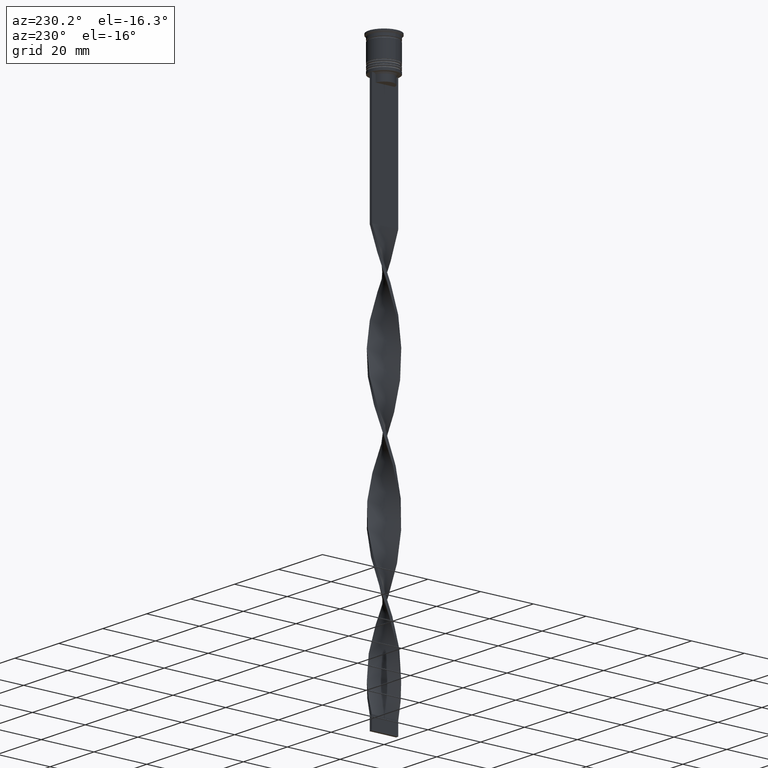
[diagram: clean part render]
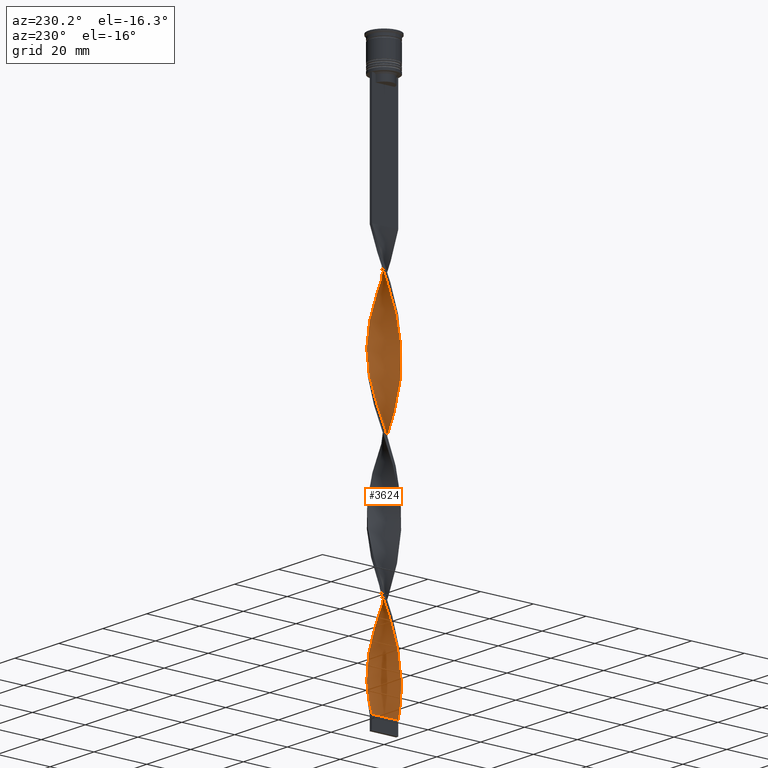
[diagram: same view with one face highlighted and labeled with its STEP entity id]
A machine part, auxiliary view. The second image highlights one B-rep face of the part: STEP entity #3624.
In plain terms, the highlighted face is a freeform B-spline surface patch.
Its self-contained STEP definition (entity closure, byte-faithful):
#14 = CARTESIAN_POINT ( 'NONE',  ( 2.272444445637943566, 4.481740313928203712, -151.9901960784313530 ) ) ;
#15 = CARTESIAN_POINT ( 'NONE',  ( 1.339972216233587865, -4.842981980115355967, -114.0098039215686185 ) ) ;
#20 = CARTESIAN_POINT ( 'NONE',  ( 5.028189627835276454, -0.4290914677958224122, -80.41176470588234793 ) ) ;
#35 = CARTESIAN_POINT ( 'NONE',  ( -2.272444445637943122, -4.481740313928203712, -102.3235294117646959 ) ) ;
#38 = CARTESIAN_POINT ( 'NONE',  ( -4.533641475362164996, -2.216507476658135189, -92.09803921568628482 ) ) ;
#41 = CARTESIAN_POINT ( 'NONE',  ( 4.004954025026647102, 3.070367026697015778, -92.09803921568628482 ) ) ;
#51 = CARTESIAN_POINT ( 'NONE',  ( -4.672296720828054362, 1.849227771946823751, -78.95098039215686470 ) ) ;
#53 = CARTESIAN_POINT ( 'NONE',  ( -4.863729793965000603, -1.345712789752187222, -89.17647058823528994 ) ) ;
#57 = CARTESIAN_POINT ( 'NONE',  ( -5.024805061206823353, -0.03652529083100779922, -131.5392156862745310 ) ) ;
#68 = CARTESIAN_POINT ( 'NONE',  ( 4.945959710900137196, 0.8874021287740044839, -137.3823529411764639 ) ) ;
#69 = CARTESIAN_POINT ( 'NONE',  ( 1.410234138924801428, 4.822990739511224589, -154.9117647058823479 ) ) ;
#87 = CARTESIAN_POINT ( 'NONE',  ( 5.021420494578371141, 0.5021420494578369143, -83.33333333333332860 ) ) ;
#89 = CARTESIAN_POINT ( 'NONE',  ( -3.688768818211570100, 3.412181795536402440, -172.4411764705882035 ) ) ;
#106 = CARTESIAN_POINT ( 'NONE',  ( -3.688768818211570100, 3.412181795536402440, -172.4411764705882035 ) ) ;
#108 = CARTESIAN_POINT ( 'NONE',  ( -4.945959710900137196, -0.8874021287740051500, -187.0490196078431211 ) ) ;
#110 = CARTESIAN_POINT ( 'NONE',  ( 4.533641475362163220, -2.216507476658133413, -173.9019607843137294 ) ) ;
#123 = CARTESIAN_POINT ( 'NONE',  ( -5.024805061206825130, 0.03652529083100775065, -184.1274509803921546 ) ) ;
#125 = CARTESIAN_POINT ( 'NONE',  ( -2.998973759622457269, 4.031892407926575217, -169.5196078431372371 ) ) ;
#142 = CARTESIAN_POINT ( 'NONE',  ( 3.688768818211569211, 3.412181795536400664, -93.55882352941176805 ) ) ;
#144 = CARTESIAN_POINT ( 'NONE',  ( -0.8912038472716528048, 4.967148691534573501, -162.2156862745098351 ) ) ;
#159 = CARTESIAN_POINT ( 'NONE',  ( 4.533641475362163220, -2.216507476658133413, -74.56862745098038658 ) ) ;
#165 = CARTESIAN_POINT ( 'NONE',  ( -0.4999999999999993339, 4.999999999999999112, -207.5000000000000000 ) ) ;
#175 = CARTESIAN_POINT ( 'NONE',  ( 4.672296720828052585, 1.849227771946823973, -187.0490196078431211 ) ) ;
#178 = CARTESIAN_POINT ( 'NONE',  ( 0.5000000000000000000, 5.000000000000000888, -58.50000000000000000 ) ) ;
#192 = CARTESIAN_POINT ( 'NONE',  ( -3.426799919866742261, 3.704571868705843318, -118.3921568627451109 ) ) ;
#215 = CARTESIAN_POINT ( 'NONE',  ( 4.932536701743520879, 0.9592088854640268281, -184.1274509803921546 ) ) ;
#224 = CARTESIAN_POINT ( 'NONE',  ( 3.057269382251585288, -3.987869597209392936, -67.26470588235292780 ) ) ;
#230 = CARTESIAN_POINT ( 'NONE',  ( -4.672296720828052585, -1.849227771946823307, -137.3823529411764639 ) ) ;
#247 = CARTESIAN_POINT ( 'NONE',  ( -0.9633182312101493672, 4.953668176878984752, -109.6274509803921546 ) ) ;
#255 = CARTESIAN_POINT ( 'NONE',  ( -4.672296720828054362, 1.849227771946823751, -78.95098039215686470 ) ) ;
#261 = CARTESIAN_POINT ( 'NONE',  ( 4.049165433819487347, -3.011821659854190703, -71.64705882352942012 ) ) ;
#266 = CARTESIAN_POINT ( 'NONE',  ( 0.8912038472716534709, 4.967148691534572613, -203.1176470588235361 ) ) ;
#271 = CARTESIAN_POINT ( 'NONE',  ( 2.207052246521972183, -4.514301760086749660, -116.9313725490195992 ) ) ;
#274 = CARTESIAN_POINT ( 'NONE',  ( 4.533641475362164996, 2.216507476658134301, -141.7647058823529562 ) ) ;
#280 = CARTESIAN_POINT ( 'NONE',  ( 1.857150046639456153, -4.692313302143462650, -162.2156862745098351 ) ) ;
#287 = CARTESIAN_POINT ( 'NONE',  ( 1.339972216233586311, 4.842981980115355078, -201.6568627450980387 ) ) ;
#292 = CARTESIAN_POINT ( 'NONE',  ( 4.500940532747438994, -2.282179822423430871, -127.1568627450980102 ) ) ;
#294 = CARTESIAN_POINT ( 'NONE',  ( -1.788740585195521815, 4.718815268696139320, -65.80392156862745878 ) ) ;
#299 = CARTESIAN_POINT ( 'NONE',  ( -2.687738844636428759, 4.271167325712942997, -115.4705882352941018 ) ) ;
#309 = CARTESIAN_POINT ( 'NONE',  ( -4.291403454590827060, -2.614164568256162280, -93.55882352941176805 ) ) ;
#313 = CARTESIAN_POINT ( 'NONE',  ( 0.03668176878985105610, 5.046331823121016136, -59.96078431372549034 ) ) ;
#318 = CARTESIAN_POINT ( 'NONE',  ( 4.500940532747436329, 2.282179822423429982, -89.17647058823528994 ) ) ;
#333 = CARTESIAN_POINT ( 'NONE',  ( 5.021420494578372917, -0.5021420494578382465, -133.0000000000000000 ) ) ;
#335 = CARTESIAN_POINT ( 'NONE',  ( -4.252947278887043936, 2.676273424560223102, -76.02941176470586981 ) ) ;
#337 = CARTESIAN_POINT ( 'NONE',  ( -1.857150046639456153, 4.692313302143462650, -112.5490196078431495 ) ) ;
#343 = ORIENTED_EDGE ( 'NONE', *, *, #979, .T. ) ;
#349 = CARTESIAN_POINT ( 'NONE',  ( -4.004954025026648878, 3.070367026697015778, -74.56862745098038658 ) ) ;
#350 = CARTESIAN_POINT ( 'NONE',  ( -0.9633182312101484790, -4.953668176878986529, -206.0392156862745026 ) ) ;
#353 = CARTESIAN_POINT ( 'NONE',  ( -3.688768818211570100, -3.412181795536400664, -143.2254901960784537 ) ) ;
#363 = CARTESIAN_POINT ( 'NONE',  ( 4.945959710900135420, -0.8874021287740040398, -78.95098039215686470 ) ) ;
#387 = CARTESIAN_POINT ( 'NONE',  ( -3.737982676843116803, -3.358196764280017010, -195.8137254901960773 ) ) ;
#409 = CARTESIAN_POINT ( 'NONE',  ( 0.9633182312101489231, -4.953668176878984752, -59.96078431372549744 ) ) ;
#411 = CARTESIAN_POINT ( 'NONE',  ( -3.426799919866744482, -3.704571868705844206, -197.2745098039215463 ) ) ;
#414 = CARTESIAN_POINT ( 'NONE',  ( 4.863729793964998827, -1.345712789752187000, -176.8235294117647243 ) ) ;
#427 = CARTESIAN_POINT ( 'NONE',  ( 4.252947278887042160, 2.676273424560221770, -90.63725490196078738 ) ) ;
#429 = CARTESIAN_POINT ( 'NONE',  ( -2.207052246521971739, 4.514301760086749660, -166.5980392156862706 ) ) ;
#446 = CARTESIAN_POINT ( 'NONE',  ( 2.207052246521970851, 4.514301760086748772, -99.40196078431372939 ) ) ;
#449 = DIRECTION ( 'NONE',  ( 0.000000000000000000, 1.000000000000000000, 0.000000000000000000 ) ) ;
#465 = CARTESIAN_POINT ( 'NONE',  ( -3.688768818211570100, -3.412181795536400664, -143.2254901960784537 ) ) ;
#482 = CARTESIAN_POINT ( 'NONE',  ( 2.272444445637942234, -4.481740313928202823, -163.6764705882352757 ) ) ;
#502 = CARTESIAN_POINT ( 'NONE',  ( 3.737982676843115026, -3.358196764280016566, -169.5196078431372371 ) ) ;
#515 = EDGE_CURVE ( 'NONE', #3653, #2132, #2410, .T. ) ;
#524 = CARTESIAN_POINT ( 'NONE',  ( -4.932536701743520879, -0.9592088854640250517, -134.4607843137254974 ) ) ;
#541 = CARTESIAN_POINT ( 'NONE',  ( 4.291403454590825284, -2.614164568256161836, -172.4411764705882035 ) ) ;
#546 = CARTESIAN_POINT ( 'NONE',  ( -5.028189627835278230, -0.4290914677958230783, -86.25490196078432348 ) ) ;
#560 = CARTESIAN_POINT ( 'NONE',  ( -2.687738844636429647, -4.271167325712944773, -100.8627450980392126 ) ) ;
#564 = CARTESIAN_POINT ( 'NONE',  ( 0.4272610392408998647, -5.006740257327794374, -111.0882352941176379 ) ) ;
#571 = CARTESIAN_POINT ( 'NONE',  ( 0.03668176878985138917, -5.046331823121015248, -156.3725490196078454 ) ) ;
#584 = CARTESIAN_POINT ( 'NONE',  ( 3.057269382251587952, 3.987869597209392047, -149.0686274509803866 ) ) ;
#587 = CARTESIAN_POINT ( 'NONE',  ( -4.843652908908672394, 1.416275721470217741, -80.41176470588234793 ) ) ;
#595 = CARTESIAN_POINT ( 'NONE',  ( 1.410234138924802538, -4.822990739511222813, -160.7549019607842808 ) ) ;
#605 = CARTESIAN_POINT ( 'NONE',  ( 0.5000000000000000000, 5.000000000000000888, -157.8333333333333144 ) ) ;
#606 = CARTESIAN_POINT ( 'NONE',  ( 3.426799919866744926, 3.704571868705843762, -147.6078431372548891 ) ) ;
#613 = CARTESIAN_POINT ( 'NONE',  ( -0.03668176878985203448, 5.046331823121015248, -106.7058823529411882 ) ) ;
#624 = CARTESIAN_POINT ( 'NONE',  ( 2.998973759622457269, -4.031892407926575217, -119.8529411764705799 ) ) ;
#626 = CARTESIAN_POINT ( 'NONE',  ( 0.5000000000000000000, 5.000000000000000888, -58.50000000000000000 ) ) ;
#631 = CARTESIAN_POINT ( 'NONE',  ( 2.625363907848422773, 4.309788251477359111, -97.94117647058824616 ) ) ;
#645 = CARTESIAN_POINT ( 'NONE',  ( 1.788740585195521371, -4.718815268696139320, -115.4705882352940876 ) ) ;
#646 = CARTESIAN_POINT ( 'NONE',  ( -5.021420494578373805, 0.5021420494578375804, -182.6666666666666856 ) ) ;
#649 = CARTESIAN_POINT ( 'NONE',  ( -1.788740585195520039, -4.718815268696138432, -150.5294117647058840 ) ) ;
#660 = CARTESIAN_POINT ( 'NONE',  ( -2.272444445637943122, -4.481740313928203712, -201.6568627450980387 ) ) ;
#664 = CARTESIAN_POINT ( 'NONE',  ( 1.788740585195521593, 4.718815268696137544, -200.1960784313725696 ) ) ;
#676 = CARTESIAN_POINT ( 'NONE',  ( -4.843652908908672394, 1.416275721470217963, -179.7450980392157192 ) ) ;
#681 = CARTESIAN_POINT ( 'NONE',  ( -0.4999999999999993339, 4.999999999999999112, -207.5000000000000000 ) ) ;
#696 = CARTESIAN_POINT ( 'NONE',  ( -4.698685634663581467, -1.781110133205160206, -189.9705882352941160 ) ) ;
#700 = CARTESIAN_POINT ( 'NONE',  ( -4.863729793965000603, -1.345712789752187222, -188.5098039215686185 ) ) ;
#717 = CARTESIAN_POINT ( 'NONE',  ( 5.028189627835276454, -0.4290914677958224122, -80.41176470588234793 ) ) ;
#722 = CARTESIAN_POINT ( 'NONE',  ( 4.672296720828052585, 1.849227771946823973, -187.0490196078431211 ) ) ;
#726 = CARTESIAN_POINT ( 'NONE',  ( 0.03668176878985105610, 5.046331823121016136, -59.96078431372549744 ) ) ;
#735 = CARTESIAN_POINT ( 'NONE',  ( -4.049165433819489124, -3.011821659854192479, -194.3529411764705799 ) ) ;
#739 = CARTESIAN_POINT ( 'NONE',  ( 5.021420494578372029, 0.5021420494578369143, -182.6666666666666856 ) ) ;
#740 = CARTESIAN_POINT ( 'NONE',  ( -0.5000000000000002220, -1.666666666666667851, -207.5000000000000000 ) ) ;
#751 = CARTESIAN_POINT ( 'NONE',  ( 5.028189627835276454, -0.4290914677958224122, -179.7450980392157192 ) ) ;
#771 = CARTESIAN_POINT ( 'NONE',  ( 4.252947278887042160, 2.676273424560221770, -189.9705882352941160 ) ) ;
#781 = CARTESIAN_POINT ( 'NONE',  ( 4.863729793964998827, -1.345712789752187000, -77.49019607843136725 ) ) ;
#788 = CARTESIAN_POINT ( 'NONE',  ( -2.998973759622455493, -4.031892407926574329, -146.1470588235294201 ) ) ;
#789 = LINE ( 'NONE', #3433, #3043 ) ;
#806 = CARTESIAN_POINT ( 'NONE',  ( 0.5000000000000000000, -4.999999999999999112, -157.8333333333333144 ) ) ;
#811 = CARTESIAN_POINT ( 'NONE',  ( -1.788740585195521815, 4.718815268696139320, -65.80392156862747299 ) ) ;
#828 = CARTESIAN_POINT ( 'NONE',  ( 1.410234138924802538, -4.822990739511222813, -160.7549019607842808 ) ) ;
#852 = CARTESIAN_POINT ( 'NONE',  ( -3.426799919866744037, -3.704571868705844206, -97.94117647058824616 ) ) ;
#853 =( BOUNDED_CURVE ( )  B_SPLINE_CURVE ( 2, ( #1049, #3197, #3161, #1722, #1661, #2881, #224, #1394, #2916, #261, #1435, #1070, #3409, #781, #2390, #20, #1524, #1805, #3791, #1510, #2373, #318, #2996, #41, #3505, #2658, #1495, #631, #1190, #3547, #2062, #2681, #1225, #613, #2957, #897, #1824, #337, #1144, #299, #1472, #3013, #1785, #3276, #1210, #1162, #2405, #3561, #2699, #2328, #57, #3576, #911, #2080, #3258, #2974, #3297, #929, #353, #2094, #859, #2351, #2112, #649, #2037, #2641, #3218, #571, #1749, #2939, #595, #280, #1452, #3808, #3528, #881, #3241, #1768, #1563, #110, #1295, #414, #3107, #2130, #2205, #739, #2189, #3069, #722, #2773, #2424, #2753, #1582, #3370, #3312, #2146, #3667, #664, #2440, #1841, #2168, #1881, #681 ),
 .UNSPECIFIED., .F., .T. ) 
 B_SPLINE_CURVE_WITH_KNOTS ( ( 3, 2, 2, 2, 2, 2, 2, 2, 2, 2, 2, 2, 2, 2, 2, 2, 2, 2, 2, 2, 2, 2, 2, 2, 2, 2, 2, 2, 2, 2, 2, 2, 2, 2, 2, 2, 2, 2, 2, 2, 2, 2, 2, 2, 2, 2, 2, 2, 2, 2, 2, 3 ),
 ( 0.000000000000000000, 0.01470588235294117453, 0.02941176470588234906, 0.04411764705882353227, 0.05882352941176469813, 0.07352941176470588480, 0.08823529411764706454, 0.1029411764705882443, 0.1176470588235293963, 0.1323529411764705899, 0.1470588235294117696, 0.1617647058823529493, 0.1764705882352941291, 0.1911764705882352811, 0.2058823529411764885, 0.2205882352941176405, 0.2352941176470587925, 0.2500000000000000000, 0.2647058823529411797, 0.2794117647058823595, 0.2941176470588235392, 0.3088235294117647189, 0.3235294117647058987, 0.3382352941176470229, 0.3529411764705882582, 0.3676470588235294379, 0.3823529411764705621, 0.3970588235294117418, 0.4117647058823529771, 0.4264705882352941013, 0.4411764705882352811, 0.4558823529411764608, 0.4705882352941175850, 0.4852941176470588203, 0.5000000000000000000, 0.5147058823529411242, 0.5294117647058823595, 0.5441176470588234837, 0.5588235294117647189, 0.5735294117647058432, 0.5882352941176470784, 0.6029411764705882026, 0.6176470588235294379, 0.6323529411764705621, 0.6470588235294117974, 0.6617647058823529216, 0.6764705882352940458, 0.6911764705882351700, 0.7058823529411765163, 0.7205882352941176405, 0.7352941176470588758, 0.7500000000000000000 ),
 .UNSPECIFIED. ) 
 CURVE ( )  GEOMETRIC_REPRESENTATION_ITEM ( )  RATIONAL_B_SPLINE_CURVE ( ( 1.000000000000000000, 0.9957341762950344677, 1.000000000000000000, 0.9957341762950344677, 1.000000000000000000, 0.9957341762950344677, 1.000000000000000000, 0.9957341762950344677, 1.000000000000000000, 0.9957341762950344677, 1.000000000000000000, 0.9957341762950344677, 1.000000000000000000, 0.9957341762950344677, 1.000000000000000000, 0.9957341762950344677, 1.000000000000000000, 0.9957341762950344677, 1.000000000000000000, 0.9957341762950344677, 1.000000000000000000, 0.9957341762950344677, 1.000000000000000000, 0.9957341762950344677, 1.000000000000000000, 0.9957341762950344677, 1.000000000000000000, 0.9957341762950344677, 1.000000000000000000, 0.9957341762950344677, 1.000000000000000000, 0.9957341762950344677, 1.000000000000000000, 0.9957341762950344677, 1.000000000000000000, 0.9957341762950344677, 1.000000000000000000, 0.9957341762950344677, 1.000000000000000000, 0.9957341762950344677, 1.000000000000000000, 0.9957341762950344677, 1.000000000000000000, 0.9957341762950344677, 1.000000000000000000, 0.9957341762950344677, 1.000000000000000000, 0.9957341762950344677, 1.000000000000000000, 0.9957341762950344677, 1.000000000000000000, 0.9957341762950344677, 1.000000000000000000, 0.9957341762950344677, 1.000000000000000000, 0.9957341762950344677, 1.000000000000000000, 0.9957341762950344677, 1.000000000000000000, 0.9957341762950344677, 1.000000000000000000, 0.9957341762950344677, 1.000000000000000000, 0.9957341762950344677, 1.000000000000000000, 0.9957341762950344677, 1.000000000000000000, 0.9957341762950344677, 1.000000000000000000, 0.9957341762950344677, 1.000000000000000000, 0.9957341762950344677, 1.000000000000000000, 0.9957341762950344677, 1.000000000000000000, 0.9957341762950344677, 1.000000000000000000, 0.9957341762950344677, 1.000000000000000000, 0.9957341762950344677, 1.000000000000000000, 0.9957341762950344677, 1.000000000000000000, 0.9957341762950344677, 1.000000000000000000, 0.9957341762950344677, 1.000000000000000000, 0.9957341762950344677, 1.000000000000000000, 0.9957341762950344677, 1.000000000000000000, 0.9957341762950344677, 1.000000000000000000, 0.9957341762950344677, 1.000000000000000000, 0.9957341762950344677, 1.000000000000000000, 0.9957341762950344677, 1.000000000000000000, 0.9957341762950344677, 1.000000000000000000, 0.9957341762950344677, 1.000000000000000000 ) ) 
 REPRESENTATION_ITEM ( '' )  );
#855 = CARTESIAN_POINT ( 'NONE',  ( 4.004954025026647990, -3.070367026697017110, -124.2352941176470580 ) ) ;
#859 = CARTESIAN_POINT ( 'NONE',  ( -2.998973759622455493, -4.031892407926574329, -146.1470588235294201 ) ) ;
#872 = CARTESIAN_POINT ( 'NONE',  ( 4.049165433819487347, 3.011821659854193811, -144.6862745098039227 ) ) ;
#881 = CARTESIAN_POINT ( 'NONE',  ( 3.426799919866743149, -3.704571868705843318, -168.0588235294117680 ) ) ;
#891 = CARTESIAN_POINT ( 'NONE',  ( 0.9633182312101491451, 4.953668176878986529, -156.3725490196078454 ) ) ;
#893 = CARTESIAN_POINT ( 'NONE',  ( -4.291403454590827060, -2.614164568256162280, -93.55882352941176805 ) ) ;
#897 = CARTESIAN_POINT ( 'NONE',  ( -0.9633182312101493672, 4.953668176878983864, -109.6274509803921404 ) ) ;
#901 = CARTESIAN_POINT ( 'NONE',  ( -0.5000000000000006661, -5.000000000000000888, -207.5000000000000000 ) ) ;
#905 = CARTESIAN_POINT ( 'NONE',  ( -4.049165433819489124, -3.011821659854192479, -95.01960784313725128 ) ) ;
#907 = CARTESIAN_POINT ( 'NONE',  ( -4.049165433819489124, -3.011821659854192035, -95.01960784313726549 ) ) ;
#911 = CARTESIAN_POINT ( 'NONE',  ( -4.932536701743520879, -0.9592088854640250517, -134.4607843137254974 ) ) ;
#922 = CARTESIAN_POINT ( 'NONE',  ( -3.737982676843116803, -3.358196764280017010, -96.48039215686274872 ) ) ;
#924 = CARTESIAN_POINT ( 'NONE',  ( 4.672296720828054362, -1.849227771946825527, -128.6176470588235361 ) ) ;
#929 = CARTESIAN_POINT ( 'NONE',  ( -4.004954025026647102, -3.070367026697014889, -141.7647058823529562 ) ) ;
#945 = CARTESIAN_POINT ( 'NONE',  ( -3.372583611396491321, 3.753996564375790879, -170.9803921568627629 ) ) ;
#964 = CARTESIAN_POINT ( 'NONE',  ( 5.024805061206822465, 0.03652529083100720941, -81.87254901960783116 ) ) ;
#966 = CARTESIAN_POINT ( 'NONE',  ( -4.500940532747438105, 2.282179822423430871, -176.8235294117647243 ) ) ;
#975 = ORIENTED_EDGE ( 'NONE', *, *, #1318, .F. ) ;
#979 = EDGE_CURVE ( 'NONE', #2886, #2132, #853, .T. ) ;
#981 = CARTESIAN_POINT ( 'NONE',  ( -0.8912038472716528048, 4.967148691534573501, -162.2156862745098351 ) ) ;
#983 = CARTESIAN_POINT ( 'NONE',  ( -4.049165433819489124, -3.011821659854192035, -194.3529411764705799 ) ) ;
#1001 = ORIENTED_EDGE ( 'NONE', *, *, #515, .F. ) ;
#1002 = CARTESIAN_POINT ( 'NONE',  ( -2.998973759622457269, 4.031892407926575217, -169.5196078431372371 ) ) ;
#1005 = CARTESIAN_POINT ( 'NONE',  ( -4.252947278887043936, 2.676273424560223102, -175.3627450980391984 ) ) ;
#1021 = CARTESIAN_POINT ( 'NONE',  ( -4.004954025026648878, 3.070367026697015778, -173.9019607843137294 ) ) ;
#1038 = CARTESIAN_POINT ( 'NONE',  ( -0.8912038472716541371, -4.967148691534571725, -153.4509803921568789 ) ) ;
#1049 = CARTESIAN_POINT ( 'NONE',  ( 0.5000000000000000000, -4.999999999999999112, -58.50000000000000000 ) ) ;
#1058 = CARTESIAN_POINT ( 'NONE',  ( 4.698685634663579691, -1.781110133205159762, -175.3627450980391984 ) ) ;
#1070 = CARTESIAN_POINT ( 'NONE',  ( 4.533641475362163220, -2.216507476658133413, -74.56862745098038658 ) ) ;
#1074 = CARTESIAN_POINT ( 'NONE',  ( -4.945959710900135420, 0.8874021287740058161, -128.6176470588235361 ) ) ;
#1092 = CARTESIAN_POINT ( 'NONE',  ( -5.028189627835275566, 0.4290914677958205803, -130.0784313725490335 ) ) ;
#1115 = CARTESIAN_POINT ( 'NONE',  ( -2.272444445637943122, 4.481740313928201935, -114.0098039215686185 ) ) ;
#1141 = CARTESIAN_POINT ( 'NONE',  ( 5.028189627835278230, 0.4290914677958235779, -135.9215686274509665 ) ) ;
#1144 = CARTESIAN_POINT ( 'NONE',  ( -2.272444445637943122, 4.481740313928201935, -114.0098039215686185 ) ) ;
#1151 = CARTESIAN_POINT ( 'NONE',  ( 1.788740585195521593, 4.718815268696137544, -200.1960784313725981 ) ) ;
#1156 = CARTESIAN_POINT ( 'NONE',  ( -4.932536701743521768, 0.9592088854640273832, -81.87254901960783116 ) ) ;
#1158 = CARTESIAN_POINT ( 'NONE',  ( -2.625363907848424105, 4.309788251477359999, -68.72549019607842524 ) ) ;
#1162 = CARTESIAN_POINT ( 'NONE',  ( -4.533641475362163220, 2.216507476658134745, -124.2352941176470580 ) ) ;
#1180 = CARTESIAN_POINT ( 'NONE',  ( 2.625363907848422773, -4.309788251477360888, -118.3921568627451109 ) ) ;
#1183 = CARTESIAN_POINT ( 'NONE',  ( 3.688768818211570100, -3.412181795536402884, -122.7745098039215605 ) ) ;
#1190 = CARTESIAN_POINT ( 'NONE',  ( 2.207052246521970851, 4.514301760086748772, -99.40196078431372939 ) ) ;
#1203 = CARTESIAN_POINT ( 'NONE',  ( -5.024805061206825130, 0.03652529083100775065, -84.79411764705882604 ) ) ;
#1205 = CARTESIAN_POINT ( 'NONE',  ( -4.004954025026648878, 3.070367026697015778, -74.56862745098038658 ) ) ;
#1210 = CARTESIAN_POINT ( 'NONE',  ( -4.291403454590824396, 2.614164568256162280, -122.7745098039215605 ) ) ;
#1219 = CARTESIAN_POINT ( 'NONE',  ( -5.021420494578372917, 0.5021420494578375804, -83.33333333333332860 ) ) ;
#1220 = CARTESIAN_POINT ( 'NONE',  ( 2.207052246521972183, -4.514301760086749660, -116.9313725490195992 ) ) ;
#1225 = CARTESIAN_POINT ( 'NONE',  ( 0.4272610392409007529, 5.006740257327792598, -105.2450980392156765 ) ) ;
#1234 = CARTESIAN_POINT ( 'NONE',  ( 4.863729793965001491, 1.345712789752185889, -138.8431372549019045 ) ) ;
#1236 = CARTESIAN_POINT ( 'NONE',  ( -4.932536701743521768, 0.9592088854640273832, -181.2058823529411598 ) ) ;
#1255 = CARTESIAN_POINT ( 'NONE',  ( -3.057269382251586176, -3.987869597209393824, -198.7352941176470722 ) ) ;
#1256 = CARTESIAN_POINT ( 'NONE',  ( -5.028189627835278230, -0.4290914677958230783, -185.5882352941176237 ) ) ;
#1270 = CARTESIAN_POINT ( 'NONE',  ( -4.672296720828054362, 1.849227771946823751, -178.2843137254901933 ) ) ;
#1272 = CARTESIAN_POINT ( 'NONE',  ( -4.291403454590827060, -2.614164568256162280, -192.8921568627450824 ) ) ;
#1273 = CARTESIAN_POINT ( 'NONE',  ( -0.4999999999999993339, 4.999999999999999112, -207.5000000000000000 ) ) ;
#1288 = CARTESIAN_POINT ( 'NONE',  ( -4.533641475362164996, -2.216507476658135189, -191.4313725490196134 ) ) ;
#1295 = CARTESIAN_POINT ( 'NONE',  ( 4.698685634663579691, -1.781110133205159762, -175.3627450980391984 ) ) ;
#1310 = CARTESIAN_POINT ( 'NONE',  ( 3.372583611396490877, 3.753996564375789102, -95.01960784313725128 ) ) ;
#1313 = CARTESIAN_POINT ( 'NONE',  ( 0.03668176878985105610, 5.046331823121016136, -159.2941176470588118 ) ) ;
#1318 = EDGE_CURVE ( 'NONE', #2369, #3653, #2813, .T. ) ;
#1326 = CARTESIAN_POINT ( 'NONE',  ( 0.8912038472716534709, 4.967148691534572613, -103.7843137254901933 ) ) ;
#1342 = CARTESIAN_POINT ( 'NONE',  ( -0.4999999999999993339, 4.999999999999999112, -108.1666666666666572 ) ) ;
#1362 = CARTESIAN_POINT ( 'NONE',  ( -4.863729793964998827, 1.345712789752186778, -127.1568627450980102 ) ) ;
#1385 = CARTESIAN_POINT ( 'NONE',  ( 2.998973759622456825, 4.031892407926573441, -195.8137254901960773 ) ) ;
#1394 = CARTESIAN_POINT ( 'NONE',  ( 3.426799919866743149, -3.704571868705843318, -68.72549019607842524 ) ) ;
#1397 = CARTESIAN_POINT ( 'NONE',  ( 0.5000000000000000000, -4.999999999999999112, -58.50000000000000000 ) ) ;
#1399 = CARTESIAN_POINT ( 'NONE',  ( -1.339972216233586755, -4.842981980115355078, -151.9901960784313530 ) ) ;
#1429 = CARTESIAN_POINT ( 'NONE',  ( 1.788740585195521371, -4.718815268696139320, -115.4705882352941018 ) ) ;
#1435 = CARTESIAN_POINT ( 'NONE',  ( 4.291403454590825284, -2.614164568256161836, -73.10784313725488914 ) ) ;
#1445 = CARTESIAN_POINT ( 'NONE',  ( 4.533641475362164996, 2.216507476658134301, -141.7647058823529562 ) ) ;
#1447 = CARTESIAN_POINT ( 'NONE',  ( 2.625363907848422773, -4.309788251477360888, -118.3921568627451109 ) ) ;
#1452 = CARTESIAN_POINT ( 'NONE',  ( 2.272444445637942234, -4.481740313928202823, -163.6764705882352757 ) ) ;
#1464 = CARTESIAN_POINT ( 'NONE',  ( 0.4272610392408998647, -5.006740257327794374, -111.0882352941176379 ) ) ;
#1467 = CARTESIAN_POINT ( 'NONE',  ( -5.024805061206825130, 0.03652529083100775065, -84.79411764705882604 ) ) ;
#1472 = CARTESIAN_POINT ( 'NONE',  ( -3.057269382251585732, 3.987869597209392047, -116.9313725490195992 ) ) ;
#1475 = EDGE_CURVE ( 'NONE', #2886, #2369, #789, .T. ) ;
#1486 = CARTESIAN_POINT ( 'NONE',  ( 4.672296720828054362, -1.849227771946825527, -128.6176470588235361 ) ) ;
#1488 = CARTESIAN_POINT ( 'NONE',  ( -2.272444445637943122, -4.481740313928203712, -102.3235294117646959 ) ) ;
#1495 = CARTESIAN_POINT ( 'NONE',  ( 2.998973759622456825, 4.031892407926573441, -96.48039215686274872 ) ) ;
#1506 = CARTESIAN_POINT ( 'NONE',  ( 5.024805061206825130, -0.03652529083100948537, -134.4607843137254974 ) ) ;
#1508 = CARTESIAN_POINT ( 'NONE',  ( -1.410234138924802982, -4.822990739511224589, -105.2450980392156765 ) ) ;
#1510 = CARTESIAN_POINT ( 'NONE',  ( 4.843652908908670618, 1.416275721470217741, -86.25490196078432348 ) ) ;
#1519 = CARTESIAN_POINT ( 'NONE',  ( 4.932536701743522656, -0.9592088854640269391, -131.5392156862745310 ) ) ;
#1520 = CARTESIAN_POINT ( 'NONE',  ( -0.5000000000000006661, -5.000000000000000888, -207.5000000000000000 ) ) ;
#1524 = CARTESIAN_POINT ( 'NONE',  ( 5.024805061206822465, 0.03652529083100720941, -81.87254901960783116 ) ) ;
#1535 = CARTESIAN_POINT ( 'NONE',  ( -4.863729793965000603, -1.345712789752187222, -188.5098039215686185 ) ) ;
#1537 = CARTESIAN_POINT ( 'NONE',  ( 1.857150046639458152, 4.692313302143463538, -153.4509803921568789 ) ) ;
#1559 = CARTESIAN_POINT ( 'NONE',  ( 4.698685634663579691, -1.781110133205159762, -76.02941176470586981 ) ) ;
#1563 = CARTESIAN_POINT ( 'NONE',  ( 4.291403454590825284, -2.614164568256161836, -172.4411764705882035 ) ) ;
#1578 = CARTESIAN_POINT ( 'NONE',  ( 3.737982676843115026, -3.358196764280016566, -70.18627450980390847 ) ) ;
#1582 = CARTESIAN_POINT ( 'NONE',  ( 3.688768818211569211, 3.412181795536400664, -192.8921568627450824 ) ) ;
#1595 = CARTESIAN_POINT ( 'NONE',  ( 4.004954025026647102, 3.070367026697015778, -92.09803921568628482 ) ) ;
#1596 = CARTESIAN_POINT ( 'NONE',  ( -4.004954025026648878, 3.070367026697015778, -173.9019607843137294 ) ) ;
#1617 = CARTESIAN_POINT ( 'NONE',  ( 2.272444445637942234, -4.481740313928202823, -64.34313725490196134 ) ) ;
#1624 = CARTESIAN_POINT ( 'NONE',  ( -0.4999999999999997780, 1.666666666666666075, -207.5000000000000000 ) ) ;
#1634 = CARTESIAN_POINT ( 'NONE',  ( -0.4272610392408992541, -5.006740257327792598, -154.9117647058823479 ) ) ;
#1649 = CARTESIAN_POINT ( 'NONE',  ( 3.372583611396490877, 3.753996564375789102, -194.3529411764705799 ) ) ;
#1661 = CARTESIAN_POINT ( 'NONE',  ( 2.272444445637942234, -4.481740313928202823, -64.34313725490196134 ) ) ;
#1670 = CARTESIAN_POINT ( 'NONE',  ( 1.857150046639456153, -4.692313302143462650, -162.2156862745098351 ) ) ;
#1693 = CARTESIAN_POINT ( 'NONE',  ( -4.533641475362163220, 2.216507476658134745, -124.2352941176470580 ) ) ;
#1711 = CARTESIAN_POINT ( 'NONE',  ( 4.945959710900135420, -0.8874021287740040398, -178.2843137254901933 ) ) ;
#1718 = CARTESIAN_POINT ( 'NONE',  ( -3.426799919866744482, -3.704571868705844206, -97.94117647058824616 ) ) ;
#1722 = CARTESIAN_POINT ( 'NONE',  ( 1.857150046639456153, -4.692313302143462650, -62.88235294117647101 ) ) ;
#1737 = CARTESIAN_POINT ( 'NONE',  ( -4.945959710900137196, -0.8874021287740051500, -87.71568627450979250 ) ) ;
#1742 = CARTESIAN_POINT ( 'NONE',  ( -2.687738844636430091, -4.271167325712943885, -100.8627450980392126 ) ) ;
#1749 = CARTESIAN_POINT ( 'NONE',  ( 0.5000000000000000000, -4.999999999999999112, -157.8333333333333144 ) ) ;
#1759 = CARTESIAN_POINT ( 'NONE',  ( -4.843652908908672394, 1.416275721470217963, -80.41176470588234793 ) ) ;
#1761 = CARTESIAN_POINT ( 'NONE',  ( -3.688768818211570100, 3.412181795536402440, -73.10784313725488914 ) ) ;
#1768 = CARTESIAN_POINT ( 'NONE',  ( 4.049165433819487347, -3.011821659854190703, -170.9803921568627629 ) ) ;
#1779 = CARTESIAN_POINT ( 'NONE',  ( 0.03668176878985105610, 5.046331823121016136, -159.2941176470588118 ) ) ;
#1781 = CARTESIAN_POINT ( 'NONE',  ( 3.057269382251587952, 3.987869597209392047, -149.0686274509803866 ) ) ;
#1785 = CARTESIAN_POINT ( 'NONE',  ( -3.737982676843115026, 3.358196764280016566, -119.8529411764705799 ) ) ;
#1798 = CARTESIAN_POINT ( 'NONE',  ( 4.843652908908673282, -1.416275721470216187, -130.0784313725490335 ) ) ;
#1800 = CARTESIAN_POINT ( 'NONE',  ( -1.339972216233586977, 4.842981980115355967, -64.34313725490196134 ) ) ;
#1805 = CARTESIAN_POINT ( 'NONE',  ( 5.021420494578372029, 0.5021420494578369143, -83.33333333333332860 ) ) ;
#1818 = CARTESIAN_POINT ( 'NONE',  ( -0.03668176878985068140, -5.046331823121016136, -109.6274509803921546 ) ) ;
#1824 = CARTESIAN_POINT ( 'NONE',  ( -1.410234138924801428, 4.822990739511222813, -111.0882352941176379 ) ) ;
#1836 = CARTESIAN_POINT ( 'NONE',  ( 4.291403454590825284, -2.614164568256161836, -73.10784313725488914 ) ) ;
#1841 = CARTESIAN_POINT ( 'NONE',  ( 0.8912038472716534709, 4.967148691534572613, -203.1176470588235361 ) ) ;
#1852 = CARTESIAN_POINT ( 'NONE',  ( -5.021420494578372917, 0.5021420494578375804, -182.6666666666666572 ) ) ;
#1855 = CARTESIAN_POINT ( 'NONE',  ( -2.625363907848424105, 4.309788251477359999, -168.0588235294117680 ) ) ;
#1875 = CARTESIAN_POINT ( 'NONE',  ( 1.857150046639456153, -4.692313302143462650, -62.88235294117647811 ) ) ;
#1877 = CARTESIAN_POINT ( 'NONE',  ( 2.272444445637943566, 4.481740313928203712, -151.9901960784313530 ) ) ;
#1881 = CARTESIAN_POINT ( 'NONE',  ( -0.03668176878985203448, 5.046331823121015248, -206.0392156862745026 ) ) ;
#1895 = CARTESIAN_POINT ( 'NONE',  ( 4.672296720828052585, 1.849227771946823973, -87.71568627450979250 ) ) ;
#1896 = CARTESIAN_POINT ( 'NONE',  ( -5.024805061206825130, 0.03652529083100775065, -184.1274509803921546 ) ) ;
#1902 = CARTESIAN_POINT ( 'NONE',  ( -0.4272610392409009750, 5.006740257327794374, -61.42156862745097357 ) ) ;
#1911 = CARTESIAN_POINT ( 'NONE',  ( 4.932536701743520879, 0.9592088854640268281, -84.79411764705882604 ) ) ;
#1928 = CARTESIAN_POINT ( 'NONE',  ( 5.021420494578371141, 0.5021420494578369143, -182.6666666666666572 ) ) ;
#1945 = CARTESIAN_POINT ( 'NONE',  ( 4.004954025026647102, 3.070367026697015778, -191.4313725490196134 ) ) ;
#1964 = CARTESIAN_POINT ( 'NONE',  ( -2.207052246521973515, -4.514301760086746995, -149.0686274509803866 ) ) ;
#1985 = CARTESIAN_POINT ( 'NONE',  ( 3.426799919866742705, -3.704571868705843318, -168.0588235294117680 ) ) ;
#1990 = CARTESIAN_POINT ( 'NONE',  ( -2.207052246521971739, 4.514301760086749660, -67.26470588235292780 ) ) ;
#2009 = CARTESIAN_POINT ( 'NONE',  ( -1.788740585195520039, -4.718815268696138432, -150.5294117647058840 ) ) ;
#2029 = CARTESIAN_POINT ( 'NONE',  ( 3.372583611396492209, -3.753996564375790435, -121.3137254901960631 ) ) ;
#2031 = CARTESIAN_POINT ( 'NONE',  ( 4.945959710900137196, 0.8874021287740044839, -137.3823529411764639 ) ) ;
#2037 = CARTESIAN_POINT ( 'NONE',  ( -1.339972216233586755, -4.842981980115355078, -151.9901960784313530 ) ) ;
#2050 = CARTESIAN_POINT ( 'NONE',  ( 3.737982676843115915, 3.358196764280017899, -146.1470588235294201 ) ) ;
#2055 = CARTESIAN_POINT ( 'NONE',  ( -2.998973759622457269, 4.031892407926575217, -70.18627450980390847 ) ) ;
#2062 = CARTESIAN_POINT ( 'NONE',  ( 1.339972216233586311, 4.842981980115355078, -102.3235294117646959 ) ) ;
#2071 = CARTESIAN_POINT ( 'NONE',  ( -1.410234138924802982, -4.822990739511224589, -105.2450980392156765 ) ) ;
#2074 = CARTESIAN_POINT ( 'NONE',  ( 4.843652908908673282, -1.416275721470216187, -130.0784313725490335 ) ) ;
#2080 = CARTESIAN_POINT ( 'NONE',  ( -4.843652908908670618, -1.416275721470218185, -135.9215686274509665 ) ) ;
#2088 = CARTESIAN_POINT ( 'NONE',  ( -0.9633182312101485900, -4.953668176878986529, -106.7058823529412024 ) ) ;
#2089 = CARTESIAN_POINT ( 'NONE',  ( -3.737982676843116803, -3.358196764280017010, -96.48039215686274872 ) ) ;
#2094 = CARTESIAN_POINT ( 'NONE',  ( -3.372583611396488656, -3.753996564375789990, -144.6862745098039227 ) ) ;
#2105 = CARTESIAN_POINT ( 'NONE',  ( -3.688768818211570100, 3.412181795536402440, -73.10784313725488914 ) ) ;
#2107 = CARTESIAN_POINT ( 'NONE',  ( -0.8912038472716528048, 4.967148691534573501, -62.88235294117647101 ) ) ;
#2112 = CARTESIAN_POINT ( 'NONE',  ( -2.207052246521973515, -4.514301760086746995, -149.0686274509803866 ) ) ;
#2127 = CARTESIAN_POINT ( 'NONE',  ( 3.057269382251585288, -3.987869597209392936, -67.26470588235292780 ) ) ;
#2130 = CARTESIAN_POINT ( 'NONE',  ( 5.028189627835276454, -0.4290914677958224122, -179.7450980392157476 ) ) ;
#2132 = VERTEX_POINT ( 'NONE', #1273 ) ;
#2142 = CARTESIAN_POINT ( 'NONE',  ( 1.339972216233586311, 4.842981980115355078, -102.3235294117646959 ) ) ;
#2146 = CARTESIAN_POINT ( 'NONE',  ( 2.625363907848422773, 4.309788251477359111, -197.2745098039215463 ) ) ;
#2159 = CARTESIAN_POINT ( 'NONE',  ( -4.500940532747438994, 2.282179822423430871, -176.8235294117647243 ) ) ;
#2162 = CARTESIAN_POINT ( 'NONE',  ( -2.687738844636430091, -4.271167325712943885, -200.1960784313725696 ) ) ;
#2168 = CARTESIAN_POINT ( 'NONE',  ( 0.4272610392409007529, 5.006740257327792598, -204.5784313725490335 ) ) ;
#2185 = CARTESIAN_POINT ( 'NONE',  ( -4.291403454590827060, -2.614164568256162280, -192.8921568627450824 ) ) ;
#2186 = CARTESIAN_POINT ( 'NONE',  ( -4.698685634663581467, -1.781110133205160206, -189.9705882352941160 ) ) ;
#2189 = CARTESIAN_POINT ( 'NONE',  ( 4.932536701743520879, 0.9592088854640268281, -184.1274509803921546 ) ) ;
#2201 = CARTESIAN_POINT ( 'NONE',  ( -2.687738844636429647, -4.271167325712944773, -200.1960784313725981 ) ) ;
#2205 = CARTESIAN_POINT ( 'NONE',  ( 5.024805061206822465, 0.03652529083100720941, -181.2058823529411598 ) ) ;
#2206 = CARTESIAN_POINT ( 'NONE',  ( -0.5000000000000006661, -5.000000000000000888, -207.5000000000000000 ) ) ;
#2216 = CARTESIAN_POINT ( 'NONE',  ( -4.698685634663580579, 1.781110133205158430, -125.6960784313725412 ) ) ;
#2236 = CARTESIAN_POINT ( 'NONE',  ( 4.863729793964998827, -1.345712789752187000, -176.8235294117647243 ) ) ;
#2245 = ORIENTED_EDGE ( 'NONE', *, *, #1475, .F. ) ;
#2254 = CARTESIAN_POINT ( 'NONE',  ( -1.857150046639456153, 4.692313302143462650, -112.5490196078431495 ) ) ;
#2271 = CARTESIAN_POINT ( 'NONE',  ( -0.03668176878985203448, 5.046331823121015248, -106.7058823529412024 ) ) ;
#2296 = CARTESIAN_POINT ( 'NONE',  ( -4.291403454590824396, 2.614164568256162280, -122.7745098039215605 ) ) ;
#2317 = CARTESIAN_POINT ( 'NONE',  ( 2.207052246521970851, 4.514301760086748772, -198.7352941176470722 ) ) ;
#2325 = CARTESIAN_POINT ( 'NONE',  ( 4.252947278887044824, -2.676273424560221770, -125.6960784313725412 ) ) ;
#2328 = CARTESIAN_POINT ( 'NONE',  ( -5.028189627835275566, 0.4290914677958205803, -130.0784313725490335 ) ) ;
#2342 = CARTESIAN_POINT ( 'NONE',  ( 1.339972216233587865, -4.842981980115355967, -114.0098039215686185 ) ) ;
#2344 = CARTESIAN_POINT ( 'NONE',  ( -0.5000000000000006661, -5.000000000000000888, -108.1666666666666572 ) ) ;
#2351 = CARTESIAN_POINT ( 'NONE',  ( -2.625363907848423661, -4.309788251477358223, -147.6078431372548891 ) ) ;
#2367 = CARTESIAN_POINT ( 'NONE',  ( 1.857150046639458152, 4.692313302143463538, -153.4509803921568789 ) ) ;
#2369 = VERTEX_POINT ( 'NONE', #178 ) ;
#2370 = CARTESIAN_POINT ( 'NONE',  ( 4.932536701743522656, -0.9592088854640269391, -131.5392156862745310 ) ) ;
#2373 = CARTESIAN_POINT ( 'NONE',  ( 4.672296720828052585, 1.849227771946823973, -87.71568627450979250 ) ) ;
#2378 = CARTESIAN_POINT ( 'NONE',  ( -0.03668176878985203448, 5.046331823121015248, -206.0392156862745026 ) ) ;
#2384 = CARTESIAN_POINT ( 'NONE',  ( -2.998973759622457269, 4.031892407926575217, -70.18627450980390847 ) ) ;
#2386 = CARTESIAN_POINT ( 'NONE',  ( -4.945959710900137196, -0.8874021287740051500, -87.71568627450979250 ) ) ;
#2390 = CARTESIAN_POINT ( 'NONE',  ( 4.945959710900135420, -0.8874021287740040398, -78.95098039215686470 ) ) ;
#2400 = CARTESIAN_POINT ( 'NONE',  ( -4.698685634663581467, -1.781110133205160206, -90.63725490196078738 ) ) ;
#2402 = CARTESIAN_POINT ( 'NONE',  ( -4.698685634663581467, -1.781110133205160206, -90.63725490196078738 ) ) ;
#2405 = CARTESIAN_POINT ( 'NONE',  ( -4.698685634663580579, 1.781110133205158430, -125.6960784313725412 ) ) ;
#2410 = B_SPLINE_CURVE_WITH_KNOTS ( 'NONE', 3,
 ( #2206, #740, #1624, #165 ),
 .UNSPECIFIED., .F., .F.,
 ( 4, 4 ),
 ( 0.000000000000000000, 1.000000000000000000 ),
 .UNSPECIFIED. ) ;
#2418 = CARTESIAN_POINT ( 'NONE',  ( 4.698685634663580579, 1.781110133205161983, -140.3039215686274588 ) ) ;
#2420 = CARTESIAN_POINT ( 'NONE',  ( -1.339972216233586977, 4.842981980115355967, -163.6764705882352757 ) ) ;
#2424 = CARTESIAN_POINT ( 'NONE',  ( 4.252947278887042160, 2.676273424560221770, -189.9705882352941160 ) ) ;
#2437 = CARTESIAN_POINT ( 'NONE',  ( 4.500940532747437217, 2.282179822423429982, -89.17647058823527573 ) ) ;
#2438 = CARTESIAN_POINT ( 'NONE',  ( 0.5000000000000000000, 5.000000000000000888, -157.8333333333333144 ) ) ;
#2440 = CARTESIAN_POINT ( 'NONE',  ( 1.339972216233586311, 4.842981980115355078, -201.6568627450980387 ) ) ;
#2452 = CARTESIAN_POINT ( 'NONE',  ( -1.857150046639457708, -4.692313302143463538, -203.1176470588235361 ) ) ;
#2454 = CARTESIAN_POINT ( 'NONE',  ( -4.672296720828054362, 1.849227771946823751, -178.2843137254901933 ) ) ;
#2470 = CARTESIAN_POINT ( 'NONE',  ( -1.410234138924802982, -4.822990739511224589, -204.5784313725490335 ) ) ;
#2495 = CARTESIAN_POINT ( 'NONE',  ( 2.998973759622456825, 4.031892407926573441, -96.48039215686274872 ) ) ;
#2496 = CARTESIAN_POINT ( 'NONE',  ( -3.737982676843116803, -3.358196764280017010, -195.8137254901960773 ) ) ;
#2514 = CARTESIAN_POINT ( 'NONE',  ( -5.021420494578371141, -0.5021420494578362481, -133.0000000000000000 ) ) ;
#2529 = CARTESIAN_POINT ( 'NONE',  ( 3.057269382251585288, -3.987869597209392936, -166.5980392156862706 ) ) ;
#2550 = CARTESIAN_POINT ( 'NONE',  ( -5.024805061206823353, -0.03652529083100779922, -131.5392156862745310 ) ) ;
#2570 = CARTESIAN_POINT ( 'NONE',  ( 2.625363907848422773, 4.309788251477359111, -197.2745098039215463 ) ) ;
#2574 = CARTESIAN_POINT ( 'NONE',  ( 0.5000000000000000000, 5.000000000000000888, -58.50000000000000000 ) ) ;
#2586 = CARTESIAN_POINT ( 'NONE',  ( 0.4272610392409007529, 5.006740257327792598, -105.2450980392156765 ) ) ;
#2616 = CARTESIAN_POINT ( 'NONE',  ( 3.372583611396492209, -3.753996564375789990, -121.3137254901960773 ) ) ;
#2633 = CARTESIAN_POINT ( 'NONE',  ( -1.857150046639457708, -4.692313302143463538, -103.7843137254901933 ) ) ;
#2635 = CARTESIAN_POINT ( 'NONE',  ( 4.500940532747438105, -2.282179822423430871, -127.1568627450980244 ) ) ;
#2641 = CARTESIAN_POINT ( 'NONE',  ( -0.8912038472716541371, -4.967148691534571725, -153.4509803921568789 ) ) ;
#2652 = CARTESIAN_POINT ( 'NONE',  ( 2.687738844636428759, 4.271167325712946550, -150.5294117647058840 ) ) ;
#2654 = CARTESIAN_POINT ( 'NONE',  ( -1.857150046639457708, -4.692313302143463538, -103.7843137254901791 ) ) ;
#2658 = CARTESIAN_POINT ( 'NONE',  ( 3.372583611396490433, 3.753996564375789102, -95.01960784313726549 ) ) ;
#2673 = CARTESIAN_POINT ( 'NONE',  ( -4.863729793965000603, -1.345712789752187222, -89.17647058823527573 ) ) ;
#2676 = CARTESIAN_POINT ( 'NONE',  ( 3.737982676843115915, 3.358196764280017899, -146.1470588235294201 ) ) ;
#2681 = CARTESIAN_POINT ( 'NONE',  ( 0.8912038472716534709, 4.967148691534572613, -103.7843137254901791 ) ) ;
#2693 = CARTESIAN_POINT ( 'NONE',  ( -2.625363907848424105, 4.309788251477359999, -68.72549019607842524 ) ) ;
#2694 = CARTESIAN_POINT ( 'NONE',  ( 0.8912038472716528048, -4.967148691534573501, -112.5490196078431495 ) ) ;
#2699 = CARTESIAN_POINT ( 'NONE',  ( -4.945959710900135420, 0.8874021287740058161, -128.6176470588235361 ) ) ;
#2708 = CARTESIAN_POINT ( 'NONE',  ( 5.028189627835278230, 0.4290914677958235779, -135.9215686274509665 ) ) ;
#2728 = CARTESIAN_POINT ( 'NONE',  ( -0.5000000000000006661, -5.000000000000000888, -207.5000000000000000 ) ) ;
#2731 = CARTESIAN_POINT ( 'NONE',  ( -3.372583611396491321, 3.753996564375790435, -170.9803921568627629 ) ) ;
#2748 = CARTESIAN_POINT ( 'NONE',  ( 1.410234138924802538, -4.822990739511222813, -61.42156862745097357 ) ) ;
#2753 = CARTESIAN_POINT ( 'NONE',  ( 4.004954025026647102, 3.070367026697015778, -191.4313725490196134 ) ) ;
#2769 = CARTESIAN_POINT ( 'NONE',  ( -4.945959710900137196, -0.8874021287740051500, -187.0490196078431211 ) ) ;
#2770 = CARTESIAN_POINT ( 'NONE',  ( -1.410234138924802982, -4.822990739511224589, -204.5784313725490335 ) ) ;
#2773 = CARTESIAN_POINT ( 'NONE',  ( 4.500940532747436329, 2.282179822423429982, -188.5098039215686185 ) ) ;
#2786 = CARTESIAN_POINT ( 'NONE',  ( 2.687738844636428315, -4.271167325712943885, -65.80392156862747299 ) ) ;
#2790 = CARTESIAN_POINT ( 'NONE',  ( 2.687738844636429203, 4.271167325712945662, -150.5294117647058840 ) ) ;
#2809 = CARTESIAN_POINT ( 'NONE',  ( -2.625363907848424105, 4.309788251477359999, -168.0588235294117680 ) ) ;
#2813 =( BOUNDED_CURVE ( )  B_SPLINE_CURVE ( 2, ( #626, #313, #3212, #2107, #1800, #294, #2993, #1158, #2055, #3236, #1761, #1205, #335, #3558, #255, #587, #2951, #2970, #1467, #546, #2386, #53, #2402, #38, #893, #907, #2089, #1718, #3501, #1742, #1488, #2654, #1508, #3543, #2344, #3272, #564, #2694, #15, #1429, #1220, #1447, #3573, #2616, #1183, #855, #2325, #2635, #924, #2074, #2370, #2910, #3785, #1141, #2031, #2933, #3804, #274, #3522, #3251, #2676, #606, #1781, #2790, #1877, #1537, #69, #3644, #2438, #1313, #3625, #144, #2420, #3611, #429, #1855, #125, #2731, #89, #1596, #1005, #966, #2454, #3293, #1236, #646, #1896, #1256, #108, #700, #2186, #3065, #1272, #983, #2496, #411, #3368, #2162, #3664, #3347, #2770, #350, #1520 ),
 .UNSPECIFIED., .F., .T. ) 
 B_SPLINE_CURVE_WITH_KNOTS ( ( 3, 2, 2, 2, 2, 2, 2, 2, 2, 2, 2, 2, 2, 2, 2, 2, 2, 2, 2, 2, 2, 2, 2, 2, 2, 2, 2, 2, 2, 2, 2, 2, 2, 2, 2, 2, 2, 2, 2, 2, 2, 2, 2, 2, 2, 2, 2, 2, 2, 2, 2, 3 ),
 ( 0.000000000000000000, 0.01470588235294117453, 0.02941176470588234906, 0.04411764705882353227, 0.05882352941176469813, 0.07352941176470588480, 0.08823529411764706454, 0.1029411764705882443, 0.1176470588235293963, 0.1323529411764705899, 0.1470588235294117696, 0.1617647058823529493, 0.1764705882352941291, 0.1911764705882352811, 0.2058823529411764885, 0.2205882352941176405, 0.2352941176470587925, 0.2500000000000000000, 0.2647058823529411797, 0.2794117647058823595, 0.2941176470588235392, 0.3088235294117647189, 0.3235294117647058987, 0.3382352941176470229, 0.3529411764705882582, 0.3676470588235294379, 0.3823529411764705621, 0.3970588235294117418, 0.4117647058823529771, 0.4264705882352941013, 0.4411764705882352811, 0.4558823529411764608, 0.4705882352941175850, 0.4852941176470588203, 0.5000000000000000000, 0.5147058823529411242, 0.5294117647058823595, 0.5441176470588234837, 0.5588235294117647189, 0.5735294117647058432, 0.5882352941176470784, 0.6029411764705882026, 0.6176470588235294379, 0.6323529411764705621, 0.6470588235294117974, 0.6617647058823529216, 0.6764705882352940458, 0.6911764705882351700, 0.7058823529411765163, 0.7205882352941176405, 0.7352941176470588758, 0.7500000000000000000 ),
 .UNSPECIFIED. ) 
 CURVE ( )  GEOMETRIC_REPRESENTATION_ITEM ( )  RATIONAL_B_SPLINE_CURVE ( ( 1.000000000000000000, 0.9957341762950344677, 1.000000000000000000, 0.9957341762950344677, 1.000000000000000000, 0.9957341762950344677, 1.000000000000000000, 0.9957341762950344677, 1.000000000000000000, 0.9957341762950344677, 1.000000000000000000, 0.9957341762950344677, 1.000000000000000000, 0.9957341762950344677, 1.000000000000000000, 0.9957341762950344677, 1.000000000000000000, 0.9957341762950344677, 1.000000000000000000, 0.9957341762950344677, 1.000000000000000000, 0.9957341762950344677, 1.000000000000000000, 0.9957341762950344677, 1.000000000000000000, 0.9957341762950344677, 1.000000000000000000, 0.9957341762950344677, 1.000000000000000000, 0.9957341762950344677, 1.000000000000000000, 0.9957341762950344677, 1.000000000000000000, 0.9957341762950344677, 1.000000000000000000, 0.9957341762950344677, 1.000000000000000000, 0.9957341762950344677, 1.000000000000000000, 0.9957341762950344677, 1.000000000000000000, 0.9957341762950344677, 1.000000000000000000, 0.9957341762950344677, 1.000000000000000000, 0.9957341762950344677, 1.000000000000000000, 0.9957341762950344677, 1.000000000000000000, 0.9957341762950344677, 1.000000000000000000, 0.9957341762950344677, 1.000000000000000000, 0.9957341762950344677, 1.000000000000000000, 0.9957341762950344677, 1.000000000000000000, 0.9957341762950344677, 1.000000000000000000, 0.9957341762950344677, 1.000000000000000000, 0.9957341762950344677, 1.000000000000000000, 0.9957341762950344677, 1.000000000000000000, 0.9957341762950344677, 1.000000000000000000, 0.9957341762950344677, 1.000000000000000000, 0.9957341762950344677, 1.000000000000000000, 0.9957341762950344677, 1.000000000000000000, 0.9957341762950344677, 1.000000000000000000, 0.9957341762950344677, 1.000000000000000000, 0.9957341762950344677, 1.000000000000000000, 0.9957341762950344677, 1.000000000000000000, 0.9957341762950344677, 1.000000000000000000, 0.9957341762950344677, 1.000000000000000000, 0.9957341762950344677, 1.000000000000000000, 0.9957341762950344677, 1.000000000000000000, 0.9957341762950344677, 1.000000000000000000, 0.9957341762950344677, 1.000000000000000000, 0.9957341762950344677, 1.000000000000000000, 0.9957341762950344677, 1.000000000000000000, 0.9957341762950344677, 1.000000000000000000, 0.9957341762950344677, 1.000000000000000000, 0.9957341762950344677, 1.000000000000000000 ) ) 
 REPRESENTATION_ITEM ( '' )  );
#2825 = CARTESIAN_POINT ( 'NONE',  ( 4.533641475362163220, -2.216507476658133413, -173.9019607843137294 ) ) ;
#2844 = CARTESIAN_POINT ( 'NONE',  ( -3.057269382251585732, 3.987869597209392047, -116.9313725490195992 ) ) ;
#2845 = EDGE_LOOP ( 'NONE', ( #2245, #343, #1001, #975 ) ) ;
#2870 = CARTESIAN_POINT ( 'NONE',  ( 3.688768818211569211, 3.412181795536400664, -192.8921568627450824 ) ) ;
#2881 = CARTESIAN_POINT ( 'NONE',  ( 2.687738844636428759, -4.271167325712942997, -65.80392156862745878 ) ) ;
#2886 = VERTEX_POINT ( 'NONE', #1397 ) ;
#2887 = CARTESIAN_POINT ( 'NONE',  ( -3.372583611396489101, -3.753996564375790435, -144.6862745098039227 ) ) ;
#2903 = CARTESIAN_POINT ( 'NONE',  ( 5.024805061206822465, 0.03652529083100720941, -181.2058823529411598 ) ) ;
#2910 = CARTESIAN_POINT ( 'NONE',  ( 5.021420494578373805, -0.5021420494578382465, -133.0000000000000000 ) ) ;
#2916 = CARTESIAN_POINT ( 'NONE',  ( 3.737982676843115026, -3.358196764280016566, -70.18627450980390847 ) ) ;
#2927 = CARTESIAN_POINT ( 'NONE',  ( -4.500940532747438994, 2.282179822423430871, -77.49019607843138147 ) ) ;
#2933 = CARTESIAN_POINT ( 'NONE',  ( 4.863729793965001491, 1.345712789752185667, -138.8431372549019329 ) ) ;
#2939 = CARTESIAN_POINT ( 'NONE',  ( 0.9633182312101489231, -4.953668176878983864, -159.2941176470588118 ) ) ;
#2948 = CARTESIAN_POINT ( 'NONE',  ( 0.8912038472716528048, -4.967148691534573501, -112.5490196078431495 ) ) ;
#2951 = CARTESIAN_POINT ( 'NONE',  ( -4.932536701743521768, 0.9592088854640273832, -81.87254901960783116 ) ) ;
#2957 = CARTESIAN_POINT ( 'NONE',  ( -0.4999999999999993339, 4.999999999999999112, -108.1666666666666572 ) ) ;
#2968 = CARTESIAN_POINT ( 'NONE',  ( -0.4272610392409009750, 5.006740257327794374, -160.7549019607842808 ) ) ;
#2970 = CARTESIAN_POINT ( 'NONE',  ( -5.021420494578373805, 0.5021420494578375804, -83.33333333333332860 ) ) ;
#2974 = CARTESIAN_POINT ( 'NONE',  ( -4.500940532747437217, -2.282179822423429094, -138.8431372549019329 ) ) ;
#2989 = CARTESIAN_POINT ( 'NONE',  ( -5.028189627835278230, -0.4290914677958230783, -86.25490196078432348 ) ) ;
#2993 = CARTESIAN_POINT ( 'NONE',  ( -2.207052246521971739, 4.514301760086749660, -67.26470588235292780 ) ) ;
#2996 = CARTESIAN_POINT ( 'NONE',  ( 4.252947278887042160, 2.676273424560221770, -90.63725490196078738 ) ) ;
#3007 = CARTESIAN_POINT ( 'NONE',  ( 4.252947278887044824, -2.676273424560221770, -125.6960784313725412 ) ) ;
#3013 = CARTESIAN_POINT ( 'NONE',  ( -3.426799919866742261, 3.704571868705843318, -118.3921568627451109 ) ) ;
#3024 = CARTESIAN_POINT ( 'NONE',  ( 4.863729793964998827, -1.345712789752187000, -77.49019607843138147 ) ) ;
#3042 = CARTESIAN_POINT ( 'NONE',  ( -3.426799919866744037, -3.704571868705844206, -197.2745098039215463 ) ) ;
#3043 = VECTOR ( 'NONE', #449, 1000.000000000000000 ) ;
#3063 = CARTESIAN_POINT ( 'NONE',  ( 3.426799919866742705, -3.704571868705843318, -68.72549019607842524 ) ) ;
#3065 = CARTESIAN_POINT ( 'NONE',  ( -4.533641475362164996, -2.216507476658135189, -191.4313725490196134 ) ) ;
#3069 = CARTESIAN_POINT ( 'NONE',  ( 4.843652908908670618, 1.416275721470217741, -185.5882352941176237 ) ) ;
#3081 = CARTESIAN_POINT ( 'NONE',  ( -2.207052246521971739, 4.514301760086749660, -166.5980392156862706 ) ) ;
#3099 = CARTESIAN_POINT ( 'NONE',  ( -1.788740585195521815, 4.718815268696139320, -165.1372549019608016 ) ) ;
#3107 = CARTESIAN_POINT ( 'NONE',  ( 4.945959710900135420, -0.8874021287740040398, -178.2843137254901933 ) ) ;
#3118 = CARTESIAN_POINT ( 'NONE',  ( 4.843652908908670618, 1.416275721470217963, -185.5882352941176237 ) ) ;
#3132 = CARTESIAN_POINT ( 'NONE',  ( -2.687738844636428315, 4.271167325712943885, -115.4705882352940876 ) ) ;
#3148 = CARTESIAN_POINT ( 'NONE',  ( 0.9633182312101489231, -4.953668176878984752, -159.2941176470588118 ) ) ;
#3161 = CARTESIAN_POINT ( 'NONE',  ( 1.410234138924802538, -4.822990739511222813, -61.42156862745097357 ) ) ;
#3170 = CARTESIAN_POINT ( 'NONE',  ( -4.049165433819488236, 3.011821659854190703, -121.3137254901960631 ) ) ;
#3188 = CARTESIAN_POINT ( 'NONE',  ( 2.687738844636428315, -4.271167325712943885, -165.1372549019608016 ) ) ;
#3197 = CARTESIAN_POINT ( 'NONE',  ( 0.9633182312101489231, -4.953668176878983864, -59.96078431372549034 ) ) ;
#3209 = CARTESIAN_POINT ( 'NONE',  ( 4.004954025026647990, -3.070367026697017110, -124.2352941176470580 ) ) ;
#3212 = CARTESIAN_POINT ( 'NONE',  ( -0.4272610392409009750, 5.006740257327794374, -61.42156862745097357 ) ) ;
#3218 = CARTESIAN_POINT ( 'NONE',  ( -0.4272610392408992541, -5.006740257327792598, -154.9117647058823479 ) ) ;
#3233 = CARTESIAN_POINT ( 'NONE',  ( 3.426799919866744482, 3.704571868705843762, -147.6078431372548891 ) ) ;
#3236 = CARTESIAN_POINT ( 'NONE',  ( -3.372583611396491321, 3.753996564375790435, -71.64705882352942012 ) ) ;
#3241 = CARTESIAN_POINT ( 'NONE',  ( 3.737982676843115026, -3.358196764280016566, -169.5196078431372371 ) ) ;
#3246 = CARTESIAN_POINT ( 'NONE',  ( 0.4272610392409007529, 5.006740257327792598, -204.5784313725490335 ) ) ;
#3250 = CARTESIAN_POINT ( 'NONE',  ( -3.372583611396491321, 3.753996564375790879, -71.64705882352943433 ) ) ;
#3251 = CARTESIAN_POINT ( 'NONE',  ( 4.049165433819487347, 3.011821659854193367, -144.6862745098039227 ) ) ;
#3258 = CARTESIAN_POINT ( 'NONE',  ( -4.672296720828052585, -1.849227771946823307, -137.3823529411764639 ) ) ;
#3271 = CARTESIAN_POINT ( 'NONE',  ( -0.5000000000000006661, -5.000000000000000888, -108.1666666666666572 ) ) ;
#3272 = CARTESIAN_POINT ( 'NONE',  ( -0.03668176878985068140, -5.046331823121016136, -109.6274509803921404 ) ) ;
#3276 = CARTESIAN_POINT ( 'NONE',  ( -4.049165433819488236, 3.011821659854190258, -121.3137254901960773 ) ) ;
#3290 = CARTESIAN_POINT ( 'NONE',  ( -4.252947278887043936, 2.676273424560223102, -76.02941176470586981 ) ) ;
#3293 = CARTESIAN_POINT ( 'NONE',  ( -4.843652908908672394, 1.416275721470217741, -179.7450980392157476 ) ) ;
#3297 = CARTESIAN_POINT ( 'NONE',  ( -4.252947278887042160, -2.676273424560223546, -140.3039215686274588 ) ) ;
#3307 = CARTESIAN_POINT ( 'NONE',  ( -5.028189627835278230, -0.4290914677958230783, -185.5882352941176237 ) ) ;
#3312 = CARTESIAN_POINT ( 'NONE',  ( 2.998973759622456825, 4.031892407926573441, -195.8137254901960773 ) ) ;
#3324 = CARTESIAN_POINT ( 'NONE',  ( -4.932536701743521768, 0.9592088854640273832, -181.2058823529411598 ) ) ;
#3343 = CARTESIAN_POINT ( 'NONE',  ( -1.339972216233586977, 4.842981980115355967, -163.6764705882352757 ) ) ;
#3347 = CARTESIAN_POINT ( 'NONE',  ( -1.857150046639457708, -4.692313302143463538, -203.1176470588235361 ) ) ;
#3350 =( BOUNDED_SURFACE ( )  B_SPLINE_SURFACE ( 1, 2, ( 
 ( #2574, #726, #1902, #3739, #3457, #811, #1990, #2693, #2384, #3250, #2105, #349, #3290, #2927, #51, #1759, #1156, #1219, #1203, #2989, #1737, #2673, #2400, #3571, #309, #905, #922, #852, #3556, #560, #35, #2633, #2071, #2088, #3271, #1818, #1464, #2948, #2342, #645, #271, #1180, #624, #2029, #3802, #3209, #3007, #292, #1486, #1798, #1519, #333, #1506, #2708, #68, #1234, #2418, #1445, #3520, #872, #2050, #3233, #584, #2652, #14, #2367, #3542, #891, #605, #1779, #2968, #981, #3343, #3099, #3081, #2809, #1002, #945, #106, #1021, #3623, #2159, #1270, #676, #3324, #1852, #123, #3307, #2769, #1535, #696, #1288, #2185, #735, #387, #3042, #1255, #2201, #660, #2452, #2470, #3592, #2728 ),
 ( #3383, #409, #2748, #1875, #1617, #2786, #2127, #3063, #1578, #3367, #1836, #159, #1559, #3024, #363, #717, #964, #87, #1911, #3642, #1895, #2437, #427, #1595, #142, #1310, #2495, #3663, #446, #3610, #2142, #1326, #2586, #2271, #1342, #247, #3753, #2254, #1115, #3132, #2844, #192, #3717, #3170, #2296, #1693, #2216, #1362, #1074, #1092, #2550, #2514, #524, #3676, #230, #3432, #3735, #3451, #465, #2887, #788, #3475, #1964, #2009, #1399, #1038, #1634, #3695, #806, #3148, #828, #1670, #482, #3188, #2529, #1985, #502, #3397, #541, #2825, #1058, #2236, #1711, #751, #2903, #1928, #215, #3118, #175, #3417, #771, #1945, #2870, #1649, #1385, #2570, #2317, #1151, #287, #266, #3246, #2378, #3551 ) ),
 .UNSPECIFIED., .F., .F., .F. ) 
 B_SPLINE_SURFACE_WITH_KNOTS ( ( 2, 2 ),
 ( 3, 2, 2, 2, 2, 2, 2, 2, 2, 2, 2, 2, 2, 2, 2, 2, 2, 2, 2, 2, 2, 2, 2, 2, 2, 2, 2, 2, 2, 2, 2, 2, 2, 2, 2, 2, 2, 2, 2, 2, 2, 2, 2, 2, 2, 2, 2, 2, 2, 2, 2, 3 ),
 ( 0.000000000000000000, 1.000000000000000000 ),
 ( 0.000000000000000000, 0.01470588235294117627, 0.02941176470588235253, 0.04411764705882353227, 0.05882352941176470507, 0.07352941176470588480, 0.08823529411764706454, 0.1029411764705882304, 0.1176470588235294101, 0.1323529411764705899, 0.1470588235294117696, 0.1617647058823529493, 0.1764705882352941291, 0.1911764705882352811, 0.2058823529411764608, 0.2205882352941176405, 0.2352941176470588203, 0.2500000000000000000, 0.2647058823529411797, 0.2794117647058823595, 0.2941176470588235392, 0.3088235294117647189, 0.3235294117647058987, 0.3382352941176470784, 0.3529411764705882582, 0.3676470588235294379, 0.3823529411764705621, 0.3970588235294117418, 0.4117647058823529216, 0.4264705882352941013, 0.4411764705882352811, 0.4558823529411764608, 0.4705882352941176405, 0.4852941176470588203, 0.5000000000000000000, 0.5147058823529411242, 0.5294117647058823595, 0.5441176470588234837, 0.5588235294117647189, 0.5735294117647058432, 0.5882352941176470784, 0.6029411764705882026, 0.6176470588235294379, 0.6323529411764705621, 0.6470588235294117974, 0.6617647058823529216, 0.6764705882352941568, 0.6911764705882352811, 0.7058823529411765163, 0.7205882352941176405, 0.7352941176470588758, 0.7500000000000000000 ),
 .UNSPECIFIED. ) 
 GEOMETRIC_REPRESENTATION_ITEM ( )  RATIONAL_B_SPLINE_SURFACE ( (
 ( 1.000000000000000000, 0.9957341762950344677, 1.000000000000000000, 0.9957341762950344677, 1.000000000000000000, 0.9957341762950344677, 1.000000000000000000, 0.9957341762950344677, 1.000000000000000000, 0.9957341762950344677, 1.000000000000000000, 0.9957341762950344677, 1.000000000000000000, 0.9957341762950344677, 1.000000000000000000, 0.9957341762950344677, 1.000000000000000000, 0.9957341762950344677, 1.000000000000000000, 0.9957341762950344677, 1.000000000000000000, 0.9957341762950344677, 1.000000000000000000, 0.9957341762950344677, 1.000000000000000000, 0.9957341762950344677, 1.000000000000000000, 0.9957341762950344677, 1.000000000000000000, 0.9957341762950344677, 1.000000000000000000, 0.9957341762950344677, 1.000000000000000000, 0.9957341762950344677, 1.000000000000000000, 0.9957341762950344677, 1.000000000000000000, 0.9957341762950344677, 1.000000000000000000, 0.9957341762950344677, 1.000000000000000000, 0.9957341762950344677, 1.000000000000000000, 0.9957341762950344677, 1.000000000000000000, 0.9957341762950344677, 1.000000000000000000, 0.9957341762950344677, 1.000000000000000000, 0.9957341762950344677, 1.000000000000000000, 0.9957341762950344677, 1.000000000000000000, 0.9957341762950344677, 1.000000000000000000, 0.9957341762950344677, 1.000000000000000000, 0.9957341762950344677, 1.000000000000000000, 0.9957341762950344677, 1.000000000000000000, 0.9957341762950344677, 1.000000000000000000, 0.9957341762950344677, 1.000000000000000000, 0.9957341762950344677, 1.000000000000000000, 0.9957341762950344677, 1.000000000000000000, 0.9957341762950344677, 1.000000000000000000, 0.9957341762950344677, 1.000000000000000000, 0.9957341762950344677, 1.000000000000000000, 0.9957341762950344677, 1.000000000000000000, 0.9957341762950344677, 1.000000000000000000, 0.9957341762950344677, 1.000000000000000000, 0.9957341762950344677, 1.000000000000000000, 0.9957341762950344677, 1.000000000000000000, 0.9957341762950344677, 1.000000000000000000, 0.9957341762950344677, 1.000000000000000000, 0.9957341762950344677, 1.000000000000000000, 0.9957341762950344677, 1.000000000000000000, 0.9957341762950344677, 1.000000000000000000, 0.9957341762950344677, 1.000000000000000000, 0.9957341762950344677, 1.000000000000000000, 0.9957341762950344677, 1.000000000000000000, 0.9957341762950344677, 1.000000000000000000),
 ( 1.000000000000000000, 0.9957341762950344677, 1.000000000000000000, 0.9957341762950344677, 1.000000000000000000, 0.9957341762950344677, 1.000000000000000000, 0.9957341762950344677, 1.000000000000000000, 0.9957341762950344677, 1.000000000000000000, 0.9957341762950344677, 1.000000000000000000, 0.9957341762950344677, 1.000000000000000000, 0.9957341762950344677, 1.000000000000000000, 0.9957341762950344677, 1.000000000000000000, 0.9957341762950344677, 1.000000000000000000, 0.9957341762950344677, 1.000000000000000000, 0.9957341762950344677, 1.000000000000000000, 0.9957341762950344677, 1.000000000000000000, 0.9957341762950344677, 1.000000000000000000, 0.9957341762950344677, 1.000000000000000000, 0.9957341762950344677, 1.000000000000000000, 0.9957341762950344677, 1.000000000000000000, 0.9957341762950344677, 1.000000000000000000, 0.9957341762950344677, 1.000000000000000000, 0.9957341762950344677, 1.000000000000000000, 0.9957341762950344677, 1.000000000000000000, 0.9957341762950344677, 1.000000000000000000, 0.9957341762950344677, 1.000000000000000000, 0.9957341762950344677, 1.000000000000000000, 0.9957341762950344677, 1.000000000000000000, 0.9957341762950344677, 1.000000000000000000, 0.9957341762950344677, 1.000000000000000000, 0.9957341762950344677, 1.000000000000000000, 0.9957341762950344677, 1.000000000000000000, 0.9957341762950344677, 1.000000000000000000, 0.9957341762950344677, 1.000000000000000000, 0.9957341762950344677, 1.000000000000000000, 0.9957341762950344677, 1.000000000000000000, 0.9957341762950344677, 1.000000000000000000, 0.9957341762950344677, 1.000000000000000000, 0.9957341762950344677, 1.000000000000000000, 0.9957341762950344677, 1.000000000000000000, 0.9957341762950344677, 1.000000000000000000, 0.9957341762950344677, 1.000000000000000000, 0.9957341762950344677, 1.000000000000000000, 0.9957341762950344677, 1.000000000000000000, 0.9957341762950344677, 1.000000000000000000, 0.9957341762950344677, 1.000000000000000000, 0.9957341762950344677, 1.000000000000000000, 0.9957341762950344677, 1.000000000000000000, 0.9957341762950344677, 1.000000000000000000, 0.9957341762950344677, 1.000000000000000000, 0.9957341762950344677, 1.000000000000000000, 0.9957341762950344677, 1.000000000000000000, 0.9957341762950344677, 1.000000000000000000, 0.9957341762950344677, 1.000000000000000000) ) ) 
 REPRESENTATION_ITEM ( '' )  SURFACE ( )  );
#3367 = CARTESIAN_POINT ( 'NONE',  ( 4.049165433819487347, -3.011821659854191147, -71.64705882352943433 ) ) ;
#3368 = CARTESIAN_POINT ( 'NONE',  ( -3.057269382251586176, -3.987869597209393824, -198.7352941176470722 ) ) ;
#3370 = CARTESIAN_POINT ( 'NONE',  ( 3.372583611396490433, 3.753996564375789102, -194.3529411764705799 ) ) ;
#3383 = CARTESIAN_POINT ( 'NONE',  ( 0.5000000000000000000, -4.999999999999999112, -58.50000000000000000 ) ) ;
#3397 = CARTESIAN_POINT ( 'NONE',  ( 4.049165433819487347, -3.011821659854191147, -170.9803921568627629 ) ) ;
#3409 = CARTESIAN_POINT ( 'NONE',  ( 4.698685634663579691, -1.781110133205159762, -76.02941176470586981 ) ) ;
#3417 = CARTESIAN_POINT ( 'NONE',  ( 4.500940532747437217, 2.282179822423429982, -188.5098039215686185 ) ) ;
#3432 = CARTESIAN_POINT ( 'NONE',  ( -4.500940532747438105, -2.282179822423428650, -138.8431372549019045 ) ) ;
#3433 = CARTESIAN_POINT ( 'NONE',  ( 0.5000000000000000000, -4.999999999999999112, -58.50000000000000000 ) ) ;
#3451 = CARTESIAN_POINT ( 'NONE',  ( -4.004954025026647102, -3.070367026697014889, -141.7647058823529562 ) ) ;
#3457 = CARTESIAN_POINT ( 'NONE',  ( -1.339972216233586977, 4.842981980115355967, -64.34313725490196134 ) ) ;
#3475 = CARTESIAN_POINT ( 'NONE',  ( -2.625363907848423661, -4.309788251477358223, -147.6078431372548891 ) ) ;
#3501 = CARTESIAN_POINT ( 'NONE',  ( -3.057269382251586176, -3.987869597209393824, -99.40196078431372939 ) ) ;
#3505 = CARTESIAN_POINT ( 'NONE',  ( 3.688768818211569211, 3.412181795536400664, -93.55882352941176805 ) ) ;
#3520 = CARTESIAN_POINT ( 'NONE',  ( 4.291403454590827948, 2.614164568256161836, -143.2254901960784537 ) ) ;
#3522 = CARTESIAN_POINT ( 'NONE',  ( 4.291403454590827948, 2.614164568256161836, -143.2254901960784537 ) ) ;
#3528 = CARTESIAN_POINT ( 'NONE',  ( 3.057269382251585288, -3.987869597209392936, -166.5980392156862706 ) ) ;
#3542 = CARTESIAN_POINT ( 'NONE',  ( 1.410234138924801428, 4.822990739511224589, -154.9117647058823479 ) ) ;
#3543 = CARTESIAN_POINT ( 'NONE',  ( -0.9633182312101484790, -4.953668176878986529, -106.7058823529411882 ) ) ;
#3547 = CARTESIAN_POINT ( 'NONE',  ( 1.788740585195521593, 4.718815268696137544, -100.8627450980392126 ) ) ;
#3551 = CARTESIAN_POINT ( 'NONE',  ( -0.4999999999999993339, 4.999999999999999112, -207.5000000000000000 ) ) ;
#3556 = CARTESIAN_POINT ( 'NONE',  ( -3.057269382251586176, -3.987869597209393824, -99.40196078431372939 ) ) ;
#3558 = CARTESIAN_POINT ( 'NONE',  ( -4.500940532747438105, 2.282179822423430871, -77.49019607843136725 ) ) ;
#3561 = CARTESIAN_POINT ( 'NONE',  ( -4.863729793964998827, 1.345712789752186778, -127.1568627450980244 ) ) ;
#3571 = CARTESIAN_POINT ( 'NONE',  ( -4.533641475362164996, -2.216507476658135189, -92.09803921568628482 ) ) ;
#3573 = CARTESIAN_POINT ( 'NONE',  ( 2.998973759622457269, -4.031892407926575217, -119.8529411764705799 ) ) ;
#3576 = CARTESIAN_POINT ( 'NONE',  ( -5.021420494578372029, -0.5021420494578362481, -133.0000000000000000 ) ) ;
#3592 = CARTESIAN_POINT ( 'NONE',  ( -0.9633182312101485900, -4.953668176878986529, -206.0392156862745026 ) ) ;
#3610 = CARTESIAN_POINT ( 'NONE',  ( 1.788740585195521593, 4.718815268696137544, -100.8627450980392126 ) ) ;
#3611 = CARTESIAN_POINT ( 'NONE',  ( -1.788740585195521815, 4.718815268696139320, -165.1372549019608016 ) ) ;
#3623 = CARTESIAN_POINT ( 'NONE',  ( -4.252947278887043936, 2.676273424560223102, -175.3627450980391984 ) ) ;
#3624 = ADVANCED_FACE ( 'NONE', ( #3654 ), #3350, .T. ) ;
#3625 = CARTESIAN_POINT ( 'NONE',  ( -0.4272610392409009750, 5.006740257327794374, -160.7549019607842808 ) ) ;
#3642 = CARTESIAN_POINT ( 'NONE',  ( 4.843652908908670618, 1.416275721470217963, -86.25490196078432348 ) ) ;
#3644 = CARTESIAN_POINT ( 'NONE',  ( 0.9633182312101491451, 4.953668176878986529, -156.3725490196078454 ) ) ;
#3653 = VERTEX_POINT ( 'NONE', #901 ) ;
#3654 = FACE_OUTER_BOUND ( 'NONE', #2845, .T. ) ;
#3663 = CARTESIAN_POINT ( 'NONE',  ( 2.625363907848422773, 4.309788251477359111, -97.94117647058824616 ) ) ;
#3664 = CARTESIAN_POINT ( 'NONE',  ( -2.272444445637943122, -4.481740313928203712, -201.6568627450980387 ) ) ;
#3667 = CARTESIAN_POINT ( 'NONE',  ( 2.207052246521970851, 4.514301760086748772, -198.7352941176470722 ) ) ;
#3676 = CARTESIAN_POINT ( 'NONE',  ( -4.843652908908670618, -1.416275721470218185, -135.9215686274509665 ) ) ;
#3695 = CARTESIAN_POINT ( 'NONE',  ( 0.03668176878985138917, -5.046331823121015248, -156.3725490196078454 ) ) ;
#3717 = CARTESIAN_POINT ( 'NONE',  ( -3.737982676843115026, 3.358196764280016566, -119.8529411764705799 ) ) ;
#3735 = CARTESIAN_POINT ( 'NONE',  ( -4.252947278887042160, -2.676273424560223546, -140.3039215686274588 ) ) ;
#3739 = CARTESIAN_POINT ( 'NONE',  ( -0.8912038472716528048, 4.967148691534573501, -62.88235294117647811 ) ) ;
#3753 = CARTESIAN_POINT ( 'NONE',  ( -1.410234138924801428, 4.822990739511222813, -111.0882352941176379 ) ) ;
#3785 = CARTESIAN_POINT ( 'NONE',  ( 5.024805061206825130, -0.03652529083100948537, -134.4607843137254974 ) ) ;
#3791 = CARTESIAN_POINT ( 'NONE',  ( 4.932536701743520879, 0.9592088854640268281, -84.79411764705882604 ) ) ;
#3802 = CARTESIAN_POINT ( 'NONE',  ( 3.688768818211570100, -3.412181795536402884, -122.7745098039215605 ) ) ;
#3804 = CARTESIAN_POINT ( 'NONE',  ( 4.698685634663580579, 1.781110133205161983, -140.3039215686274588 ) ) ;
#3808 = CARTESIAN_POINT ( 'NONE',  ( 2.687738844636428759, -4.271167325712942997, -165.1372549019608016 ) ) ;